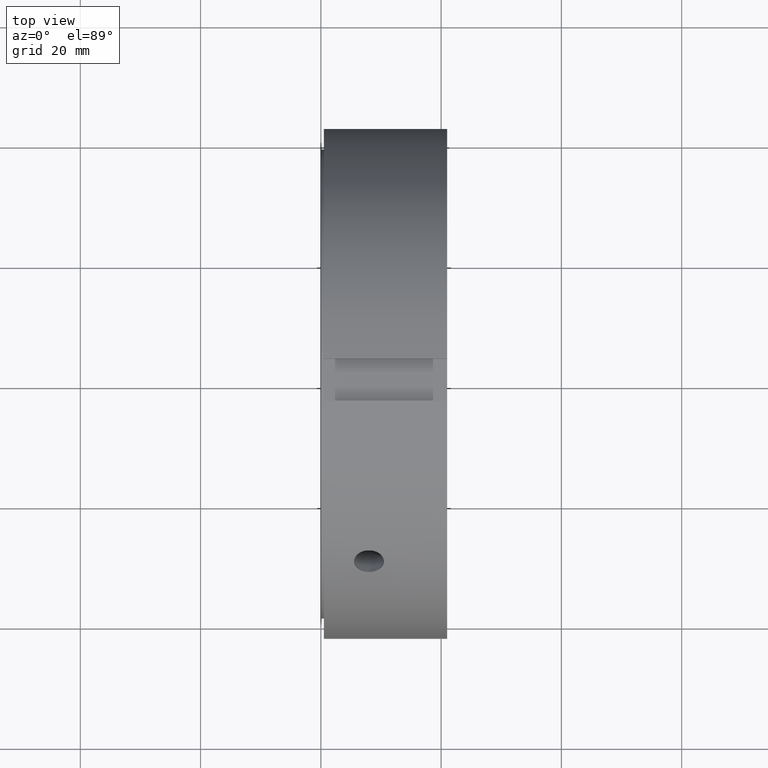
[diagram: clean part render]
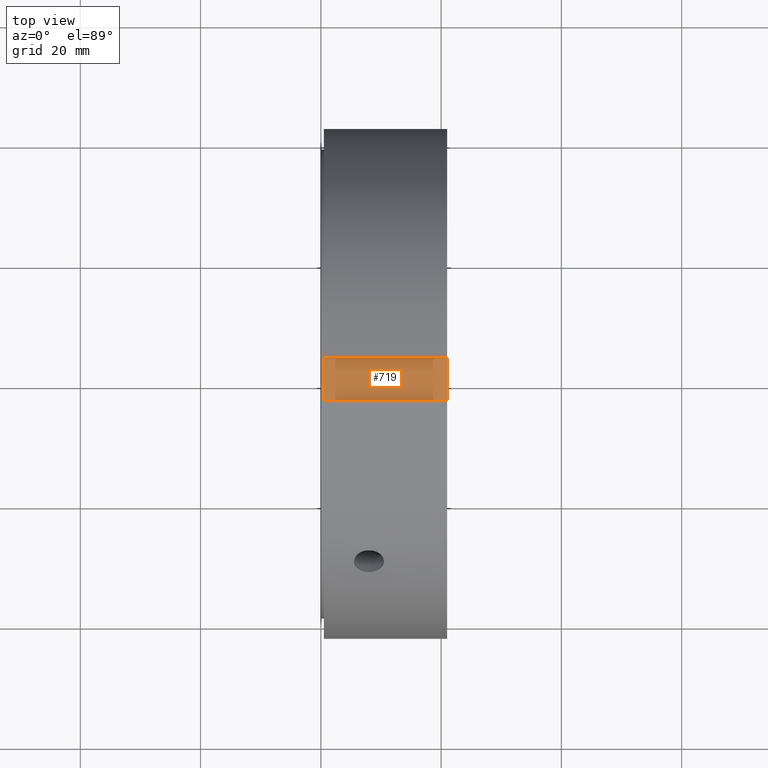
[diagram: same view with one face highlighted and labeled with its STEP entity id]
A machine part, top view. The second image highlights one B-rep face of the part: STEP entity #719.
In plain terms, the highlighted planar face has unit normal (0, 0, -1).
Its self-contained STEP definition (entity closure, byte-faithful):
#623=CARTESIAN_POINT('',(0.499999999999989,3.500000000000001,39.5));
#624=VERTEX_POINT('',#623);
#633=CARTESIAN_POINT('',(20.999999999999986,3.500000000000001,39.5));
#634=VERTEX_POINT('',#633);
#635=CARTESIAN_POINT('',(20.999999999999986,3.500000000000001,39.5));
#636=DIRECTION('',(-1.0,0.0,0.0));
#637=VECTOR('',#636,20.5);
#638=LINE('',#635,#637);
#639=EDGE_CURVE('',#634,#624,#638,.T.);
#665=CARTESIAN_POINT('',(0.499999999999989,-3.499999999999996,39.5));
#666=VERTEX_POINT('',#665);
#681=CARTESIAN_POINT('',(20.999999999999986,-3.499999999999996,39.5));
#682=VERTEX_POINT('',#681);
#689=CARTESIAN_POINT('',(20.999999999999986,-3.499999999999996,39.5));
#690=DIRECTION('',(-1.0,0.0,0.0));
#691=VECTOR('',#690,20.5);
#692=LINE('',#689,#691);
#693=EDGE_CURVE('',#682,#666,#692,.T.);
#698=CARTESIAN_POINT('',(20.999999999999986,-3.499999999999996,39.5));
#699=DIRECTION('',(0.0,0.0,-1.0));
#700=DIRECTION('',(0.0,1.0,0.0));
#701=AXIS2_PLACEMENT_3D('',#698,#699,#700);
#702=PLANE('',#701);
#703=CARTESIAN_POINT('',(0.499999999999989,-3.5,39.499999999999993));
#704=DIRECTION('',(0.0,1.0,0.0));
#705=VECTOR('',#704,7.0);
#706=LINE('',#703,#705);
#707=EDGE_CURVE('',#666,#624,#706,.T.);
#708=ORIENTED_EDGE('',*,*,#707,.F.);
#709=ORIENTED_EDGE('',*,*,#693,.F.);
#710=CARTESIAN_POINT('',(20.999999999999986,3.5,39.499999999999993));
#711=DIRECTION('',(0.0,-1.0,0.0));
#712=VECTOR('',#711,6.999999999999996);
#713=LINE('',#710,#712);
#714=EDGE_CURVE('',#634,#682,#713,.T.);
#715=ORIENTED_EDGE('',*,*,#714,.F.);
#716=ORIENTED_EDGE('',*,*,#639,.T.);
#717=EDGE_LOOP('',(#708,#709,#715,#716));
#718=FACE_OUTER_BOUND('',#717,.T.);
#719=ADVANCED_FACE('',(#718),#702,.F.);